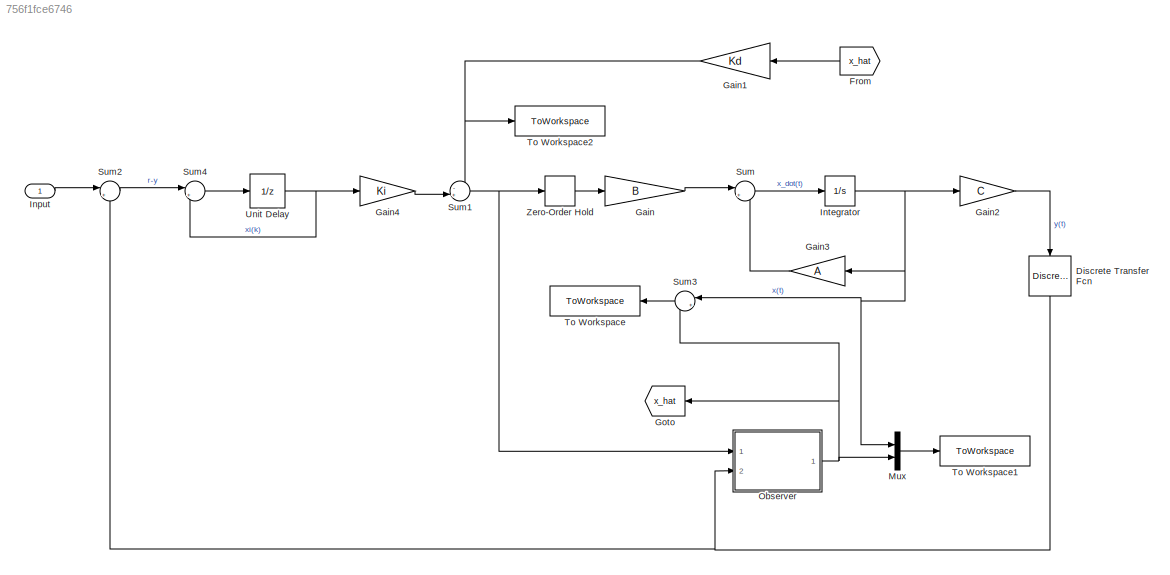
MODEL slx_756f1fce6746
KIND model
CONFIG AbsTol = auto
CONFIG EnableMultiTasking = off
CONFIG FixedStep = auto
CONFIG MaxStep = auto
CONFIG MinStep = auto
CONFIG RelTol = 1e-3
CONFIG SampleTimeConstraint = Unconstrained
CONFIG SolverName = VariableStepAuto
CONFIG StartTime = 0.0
CONFIG StopTime = 200
BLOCK [DiscreteTransferFcn] Discrete Transfer Fcn
  Denominator = 1
  InputPortMap = u0
  NameLocation = left
  Ports = [1, 1]
  SampleTime = Ts
BLOCK [From] From
  GotoTag = x_hat
  NameLocation = top
BLOCK [Gain] Gain
  Gain = B
  Multiplication = Matrix(K*u) (u vector)
BLOCK [Gain] Gain1
  Gain = Kd
  Multiplication = Matrix(K*u) (u vector)
  NameLocation = top
BLOCK [Gain] Gain2
  Gain = C
  Multiplication = Matrix(K*u) (u vector)
BLOCK [Gain] Gain3
  Gain = A
  Multiplication = Matrix(K*u) (u vector)
  NameLocation = top
BLOCK [Gain] Gain4
  Gain = Ki
  Multiplication = Matrix(K*u) (u vector)
BLOCK [Goto] Goto
  GotoTag = x_hat
  NameLocation = top
BLOCK [Inport] Input
  PortDimensions = 2
BLOCK [Integrator] Integrator
  InitialCondition = x0
  Ports = [1, 1]
BLOCK [Mux] Mux
  DisplayOption = bar
  Inputs = 2
  Ports = [2, 1]
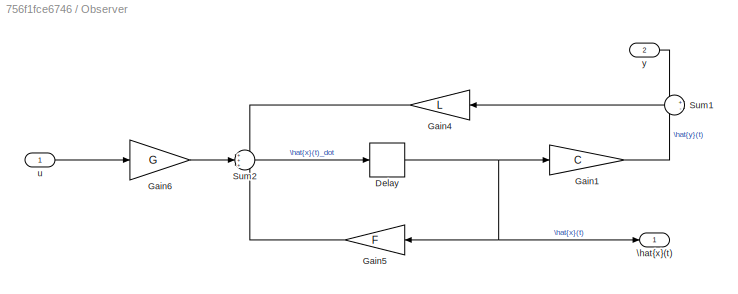
BLOCK [SubSystem] Observer
  Ports = [2, 1]
  RequestExecContextInheritance = off
BLOCK [Delay] Observer/Delay
  DelayLength = 1
  InitialCondition = x_esht_0
  InputPortMap = u0
  Ports = [1, 1]
  SampleTime = Ts
BLOCK [Gain] Observer/Gain1
  Gain = C
  Multiplication = Matrix(K*u) (u vector)
BLOCK [Gain] Observer/Gain4
  Gain = L
  Multiplication = Matrix(K*u) (u vector)
  NameLocation = top
BLOCK [Gain] Observer/Gain5
  Gain = F
  Multiplication = Matrix(K*u) (u vector)
  NameLocation = top
BLOCK [Gain] Observer/Gain6
  Gain = G
  Multiplication = Matrix(K*u) (u vector)
BLOCK [Sum] Observer/Sum1
  Inputs = +-
  NameLocation = top
  Ports = [2, 1]
BLOCK [Sum] Observer/Sum2
  Inputs = +++
  Ports = [3, 1]
BLOCK [Outport] Observer/\hat{x}(t)
  NameLocation = top
BLOCK [Inport] Observer/u
BLOCK [Inport] Observer/y
  Port = 2
BLOCK [Sum] Sum
  Inputs = |++
  Ports = [2, 1]
BLOCK [Sum] Sum1
  Inputs = -+|
  Ports = [2, 1]
BLOCK [Sum] Sum2
  Inputs = |+-
  Ports = [2, 1]
BLOCK [Sum] Sum3
  Inputs = |+-
  NameLocation = top
  Ports = [2, 1]
BLOCK [Sum] Sum4
  Inputs = |++
  Ports = [2, 1]
BLOCK [ToWorkspace] To Workspace
  FixptAsFi = on
  MaxDataPoints = inf
  NameLocation = top
  Ports = [1]
  SampleTime = -1
  SaveFormat = Structure With Time
  VariableName = error
BLOCK [ToWorkspace] To Workspace1
  FixptAsFi = on
  MaxDataPoints = inf
  Ports = [1]
  SampleTime = -1
  SaveFormat = Structure With Time
  VariableName = states
BLOCK [ToWorkspace] To Workspace2
  FixptAsFi = on
  MaxDataPoints = inf
  Ports = [1]
  SampleTime = -1
  SaveFormat = Structure With Time
  VariableName = control
BLOCK [UnitDelay] Unit Delay
  HasFrameUpgradeWarning = on
  SampleTime = Ts
BLOCK [ZeroOrderHold] Zero-Order Hold
  SampleTime = Ts
NET Discrete Transfer Fcn:1 -> Observer:2, Sum2:2
LINE From:1 -> Gain1:1
NET Gain1:1 -> Sum1:1, To Workspace2:1
LINE Gain2:1 -> Discrete Transfer Fcn:1
LINE Gain3:1 -> Sum:2
LINE Gain4:1 -> Sum1:2
LINE Gain:1 -> Sum:1
LINE Input:1 -> Sum2:1
NET Integrator:1 -> Gain2:1, Gain3:1, Mux:1, Sum3:1
LINE Mux:1 -> To Workspace1:1
NET Observer/Delay:1 -> Observer/Gain1:1, Observer/Gain5:1, Observer/\hat{x}(t):1
LINE Observer/Gain1:1 -> Observer/Sum1:2
LINE Observer/Gain4:1 -> Observer/Sum2:1
LINE Observer/Gain5:1 -> Observer/Sum2:3
LINE Observer/Gain6:1 -> Observer/Sum2:2
LINE Observer/Sum1:1 -> Observer/Gain4:1
LINE Observer/Sum2:1 -> Observer/Delay:1
LINE Observer/u:1 -> Observer/Gain6:1
LINE Observer/y:1 -> Observer/Sum1:1
NET Observer:1 -> Goto:1, Mux:2, Sum3:2
NET Sum1:1 -> Observer:1, Zero-Order Hold:1
LINE Sum2:1 -> Sum4:1
LINE Sum3:1 -> To Workspace:1
LINE Sum4:1 -> Unit Delay:1
LINE Sum:1 -> Integrator:1
NET Unit Delay:1 -> Gain4:1, Sum4:2
LINE Zero-Order Hold:1 -> Gain:1
note: NET lines group one-source signal fan-out (src -> all destinations, sorted); 1:1 wires keep LINE
